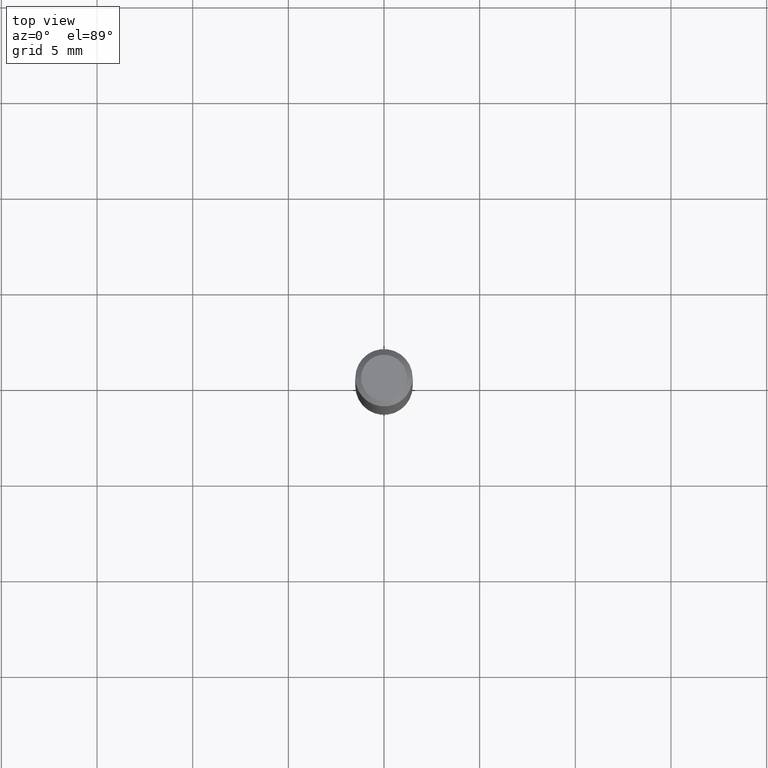
[diagram: clean part render]
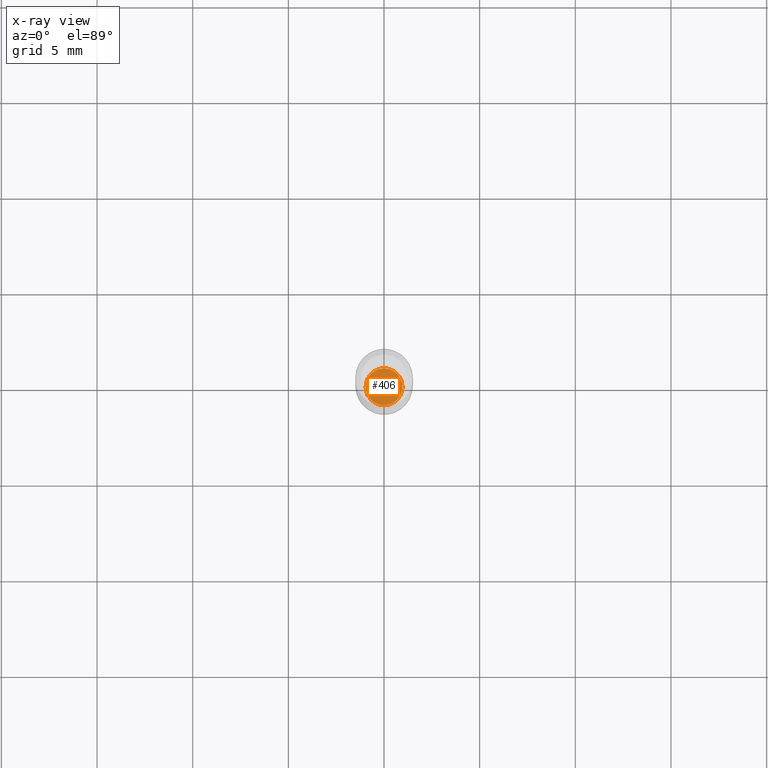
[diagram: x-ray — body ghosted, one internal face saturated and labeled with its STEP entity id]
A machine part, top view, then the same camera in x-ray: the body is ghosted and one INTERNAL B-rep face — a face not visible from any outside direction — is saturated and labeled: STEP entity #406.
In plain terms, the highlighted planar face has unit normal (-0, 0, 1).
Its self-contained STEP definition (entity closure, byte-faithful):
#52 = DIRECTION ( 'NONE',  ( -2.438088387897960049E-29, 3.491481338843145188E-15, 1.000000000000000000 ) ) ;
#56 = AXIS2_PLACEMENT_3D ( 'NONE', #58, #324, #104 ) ;
#58 = CARTESIAN_POINT ( 'NONE',  ( 2.676565608369632355E-29, -3.821426325363822773E-15, -1.094500000000000028 ) ) ;
#104 = DIRECTION ( 'NONE',  ( 1.000000000000000000, -6.982962677686265133E-15, 0.000000000000000000 ) ) ;
#116 = ORIENTED_EDGE ( 'NONE', *, *, #185, .F. ) ;
#166 = CARTESIAN_POINT ( 'NONE',  ( 0.03789999999999999619, -4.086080610848132181E-15, -1.094500000000000028 ) ) ;
#173 = AXIS2_PLACEMENT_3D ( 'NONE', #392, #52, #206 ) ;
#185 = EDGE_CURVE ( 'NONE', #382, #342, #277, .T. ) ;
#195 = ORIENTED_EDGE ( 'NONE', *, *, #353, .F. ) ;
#206 = DIRECTION ( 'NONE',  ( 1.000000000000000000, -6.982962677686265922E-15, 4.876176775795935793E-29 ) ) ;
#238 = PLANE ( 'NONE',  #173 ) ;
#277 = CIRCLE ( 'NONE', #56, 0.03789999999999999619 ) ;
#324 = DIRECTION ( 'NONE',  ( -2.445468806185136597E-29, 3.491481338843145583E-15, 1.000000000000000000 ) ) ;
#342 = VERTEX_POINT ( 'NONE', #446 ) ;
#353 = EDGE_CURVE ( 'NONE', #342, #382, #368, .T. ) ;
#368 = CIRCLE ( 'NONE', #430, 0.03789999999999999619 ) ;
#382 = VERTEX_POINT ( 'NONE', #166 ) ;
#386 = CARTESIAN_POINT ( 'NONE',  ( 2.676565608369632355E-29, -3.821426325363822773E-15, -1.094500000000000028 ) ) ;
#392 = CARTESIAN_POINT ( 'NONE',  ( -7.793461323483243875E-31, -7.766027419117828059E-15, -1.094500000000000028 ) ) ;
#406 = ADVANCED_FACE ( 'NONE', ( #432 ), #238, .F. ) ;
#430 = AXIS2_PLACEMENT_3D ( 'NONE', #386, #462, #466 ) ;
#432 = FACE_OUTER_BOUND ( 'NONE', #454, .T. ) ;
#446 = CARTESIAN_POINT ( 'NONE',  ( -0.03789999999999999619, -3.549481401336633678E-15, -1.094500000000000028 ) ) ;
#454 = EDGE_LOOP ( 'NONE', ( #116, #195 ) ) ;
#462 = DIRECTION ( 'NONE',  ( -2.445468806185136597E-29, 3.491481338843145583E-15, 1.000000000000000000 ) ) ;
#466 = DIRECTION ( 'NONE',  ( 1.000000000000000000, -6.982962677686265133E-15, 0.000000000000000000 ) ) ;